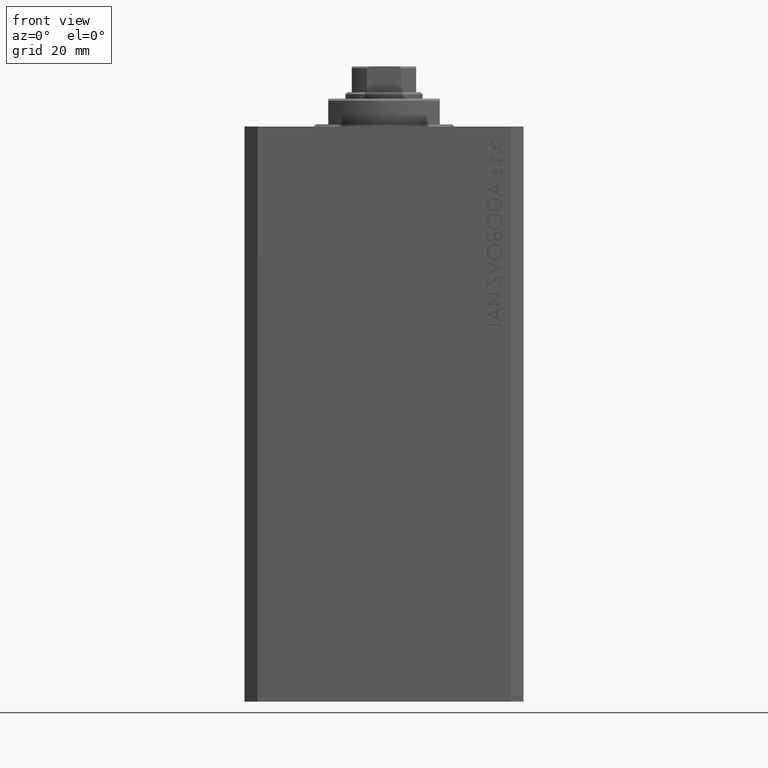
[diagram: clean part render]
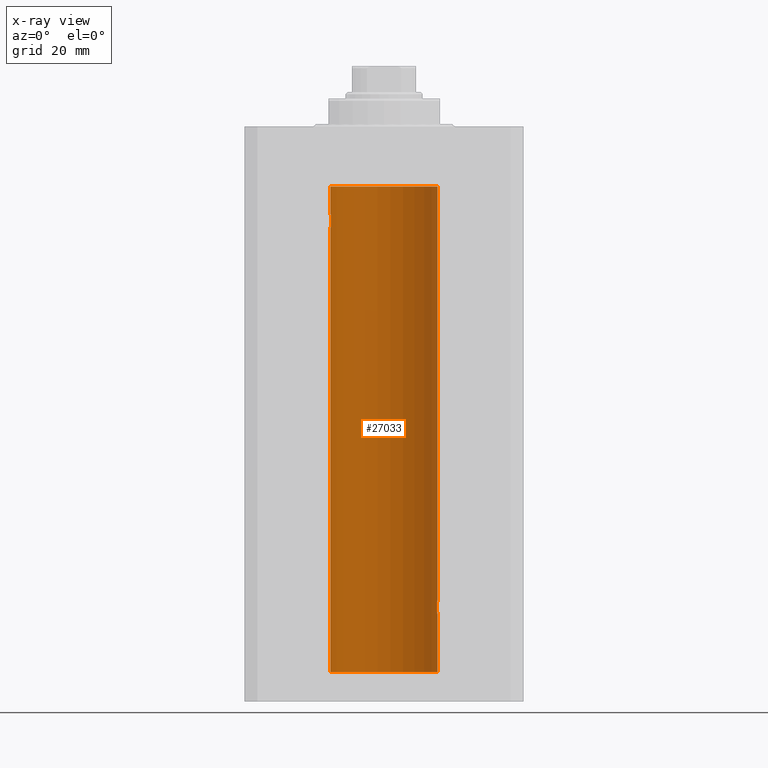
[diagram: x-ray — body ghosted, one internal face saturated and labeled with its STEP entity id]
A machine part, front view, then the same camera in x-ray: the body is ghosted and one INTERNAL B-rep face — a face not visible from any outside direction — is saturated and labeled: STEP entity #27033.
In plain terms, the highlighted cylindrical surface (partial cylindrical patch) has radius 12.5 mm, axis along (0, 0, 1).
Its self-contained STEP definition (entity closure, byte-faithful):
#165 = DIRECTION ( 'NONE',  ( 1.000000000000000000, 0.000000000000000000, 0.000000000000000000 ) ) ;
#208 = CARTESIAN_POINT ( 'NONE',  ( 12.43016561391612917, 1.322713721413880661, -113.5057887783670338 ) ) ;
#715 = DIRECTION ( 'NONE',  ( -0.000000000000000000, -0.000000000000000000, 1.000000000000000000 ) ) ;
#1342 = CARTESIAN_POINT ( 'NONE',  ( -12.37922086519035325, 1.734998657226764829, -23.00335814299181436 ) ) ;
#1849 = EDGE_CURVE ( 'NONE', #30759, #12184, #9492, .T. ) ;
#2438 = EDGE_CURVE ( 'NONE', #28802, #42203, #28899, .T. ) ;
#2780 = CARTESIAN_POINT ( 'NONE',  ( 12.50000000000000000, 0.000000000000000000, -127.0999999999999943 ) ) ;
#3203 = ORIENTED_EDGE ( 'NONE', *, *, #32482, .T. ) ;
#3784 = CARTESIAN_POINT ( 'NONE',  ( 12.50000000000000178, 0.1324055009716466613, -114.0000000000000568 ) ) ;
#4008 = CARTESIAN_POINT ( 'NONE',  ( 12.50000000000000000, -7.266276684081261841E-23, -110.0000000000000142 ) ) ;
#4174 = DIRECTION ( 'NONE',  ( 0.000000000000000000, 0.000000000000000000, 1.000000000000000000 ) ) ;
#4257 = CARTESIAN_POINT ( 'NONE',  ( 12.50000000000000000, 0.000000000000000000, -127.0999999999999943 ) ) ;
#4657 = CARTESIAN_POINT ( 'NONE',  ( 12.46910683544638232, 0.8866026273585037032, -110.2024786368969700 ) ) ;
#4941 = CARTESIAN_POINT ( 'NONE',  ( -12.48983485452574982, 0.5201193324741355539, -23.93561774521849372 ) ) ;
#5148 = CARTESIAN_POINT ( 'NONE',  ( 12.44079117518645639, 1.220047488436368122, -110.4098967633508437 ) ) ;
#5391 = AXIS2_PLACEMENT_3D ( 'NONE', #15160, #4174, #35963 ) ;
#5644 = CARTESIAN_POINT ( 'NONE',  ( -12.34109209020652465, 1.986986967296539897, -22.26269462454597914 ) ) ;
#5678 = ORIENTED_EDGE ( 'NONE', *, *, #1849, .F. ) ;
#5728 = ORIENTED_EDGE ( 'NONE', *, *, #2438, .T. ) ;
#5905 = ORIENTED_EDGE ( 'NONE', *, *, #26529, .T. ) ;
#6108 = VECTOR ( 'NONE', #27204, 1000.000000000000000 ) ;
#7618 = CARTESIAN_POINT ( 'NONE',  ( 12.33896267925302759, 2.000000000000247802, -112.0000000000000142 ) ) ;
#8283 = CARTESIAN_POINT ( 'NONE',  ( -12.49789934882883458, 0.2624928479599910047, -20.01301208516349917 ) ) ;
#8336 = VERTEX_POINT ( 'NONE', #32475 ) ;
#8737 = CARTESIAN_POINT ( 'NONE',  ( 12.49999999999999822, 0.1306079576516667173, -110.0000000000000000 ) ) ;
#8760 = VECTOR ( 'NONE', #12827, 1000.000000000000000 ) ;
#8786 = LINE ( 'NONE', #23087, #30540 ) ;
#9460 = CARTESIAN_POINT ( 'NONE',  ( -12.34922241902463114, 1.935814255713574239, -22.51937350851555308 ) ) ;
#9492 = LINE ( 'NONE', #23555, #8760 ) ;
#10230 = DIRECTION ( 'NONE',  ( -0.000000000000000000, -0.000000000000000000, 1.000000000000000000 ) ) ;
#10246 = VERTEX_POINT ( 'NONE', #35850 ) ;
#10575 = B_SPLINE_CURVE_WITH_KNOTS ( 'NONE', 3,
 ( #14693, #36904, #15410, #40703, #40466, #22314, #22551, #29007, #19450, #23728, #5148, #20144, #4657, #26377, #11826, #41426, #8737, #40948 ),
 .UNSPECIFIED., .F., .F.,
 ( 4, 2, 2, 2, 2, 2, 2, 2, 4 ),
 ( 0.003132244164174466730, 0.003523586189974241625, 0.003914928215774016521, 0.004306270241573791416, 0.004697612267373566311, 0.005088954293173341206, 0.005480296318973116101, 0.005871638344772890997, 0.006262980370572665892 ),
 .UNSPECIFIED. ) ;
#10967 = CARTESIAN_POINT ( 'NONE',  ( 12.48989642018887736, 0.5185418732824252919, -113.9360129218760989 ) ) ;
#11054 = VECTOR ( 'NONE', #715, 1000.000000000000000 ) ;
#11169 = ORIENTED_EDGE ( 'NONE', *, *, #31028, .T. ) ;
#11198 = CARTESIAN_POINT ( 'NONE',  ( 12.37760587642916477, 1.747868572747719229, -113.0063965316900294 ) ) ;
#11617 = CARTESIAN_POINT ( 'NONE',  ( -12.46021263690096958, 1.002494658017156981, -20.26446744561863156 ) ) ;
#11826 = CARTESIAN_POINT ( 'NONE',  ( 12.48983962833819028, 0.5199974825204898288, -110.0643516080802016 ) ) ;
#12184 = VERTEX_POINT ( 'NONE', #20576 ) ;
#12431 = ORIENTED_EDGE ( 'NONE', *, *, #28105, .F. ) ;
#12666 = LINE ( 'NONE', #2780, #6108 ) ;
#12799 = CARTESIAN_POINT ( 'NONE',  ( -12.43034574091277911, 1.321095788880539024, -23.50733550364322255 ) ) ;
#12827 = DIRECTION ( 'NONE',  ( -0.000000000000000000, -0.000000000000000000, 1.000000000000000000 ) ) ;
#13698 = CARTESIAN_POINT ( 'NONE',  ( 12.50000000000000000, 2.320363022323678888E-15, -114.0000000000000142 ) ) ;
#13761 = AXIS2_PLACEMENT_3D ( 'NONE', #17445, #35377, #31297 ) ;
#13807 = CARTESIAN_POINT ( 'NONE',  ( 0.000000000000000000, 0.000000000000000000, -127.0999999999999943 ) ) ;
#14259 = VERTEX_POINT ( 'NONE', #19037 ) ;
#14693 = CARTESIAN_POINT ( 'NONE',  ( 12.33896267925302759, 2.000000000000247802, -112.0000000000000142 ) ) ;
#14780 = CARTESIAN_POINT ( 'NONE',  ( 12.39869754437268590, 1.598954131913722820, -113.2293215281301002 ) ) ;
#15160 = CARTESIAN_POINT ( 'NONE',  ( 0.000000000000000000, 0.000000000000000000, -127.0999999999999943 ) ) ;
#15190 = CARTESIAN_POINT ( 'NONE',  ( -12.48390768591463207, 0.6455696738844916016, -20.10252270298193977 ) ) ;
#15410 = CARTESIAN_POINT ( 'NONE',  ( 12.34110728646152388, 1.986893050944454453, -111.7366134776498257 ) ) ;
#15913 = CARTESIAN_POINT ( 'NONE',  ( -12.39864157855465088, 1.590288205413973532, -23.21980790594580313 ) ) ;
#16146 = CARTESIAN_POINT ( 'NONE',  ( -12.37764291807175354, 1.747608771958140794, -20.99316879552500481 ) ) ;
#16379 = CARTESIAN_POINT ( 'NONE',  ( -12.44076681548080288, 1.220297236145718944, -23.58991408680628155 ) ) ;
#16609 = CARTESIAN_POINT ( 'NONE',  ( -12.34781876294798053, 1.947190906025043633, -21.47436412829509678 ) ) ;
#17445 = CARTESIAN_POINT ( 'NONE',  ( 0.000000000000000000, 0.000000000000000000, -13.99999999999999822 ) ) ;
#18305 = CIRCLE ( 'NONE', #13761, 12.50000000000000000 ) ;
#18763 = CARTESIAN_POINT ( 'NONE',  ( -12.50000000000000000, 1.867773856434666690E-17, -20.00000000000000000 ) ) ;
#19037 = CARTESIAN_POINT ( 'NONE',  ( -12.50000000000000000, 1.530808426276628993E-15, -23.99999999999999645 ) ) ;
#19450 = CARTESIAN_POINT ( 'NONE',  ( 12.40916530024876430, 1.507117913375715990, -110.6786595504900532 ) ) ;
#19478 = CARTESIAN_POINT ( 'NONE',  ( -12.33895470450623044, 2.000049200055401766, -22.12992629360264729 ) ) ;
#19943 = CARTESIAN_POINT ( 'NONE',  ( -12.33897869807161385, 1.999901172190678089, -21.73788193668374547 ) ) ;
#20144 = CARTESIAN_POINT ( 'NONE',  ( 12.46011632531798874, 1.003644408234883434, -110.2651679968767411 ) ) ;
#20576 = CARTESIAN_POINT ( 'NONE',  ( -12.50000000000000000, 1.530808498934191521E-15, -13.99999999999999822 ) ) ;
#22314 = CARTESIAN_POINT ( 'NONE',  ( 12.37021546997940291, 1.797317011867403114, -111.1129511974108226 ) ) ;
#22551 = CARTESIAN_POINT ( 'NONE',  ( 12.37925647381943506, 1.734744884174218571, -110.9962073259865178 ) ) ;
#22814 = CARTESIAN_POINT ( 'NONE',  ( -12.48990118705761532, 0.5184196815546056047, -20.06395648222637007 ) ) ;
#23087 = CARTESIAN_POINT ( 'NONE',  ( -12.50000000000000000, 1.530808498934191521E-15, -127.0999999999999943 ) ) ;
#23555 = CARTESIAN_POINT ( 'NONE',  ( -12.50000000000000000, 1.530808498934191521E-15, -127.0999999999999943 ) ) ;
#23728 = CARTESIAN_POINT ( 'NONE',  ( 12.43037348241797524, 1.320834183883837554, -110.4924383770429301 ) ) ;
#23888 = EDGE_CURVE ( 'NONE', #44546, #28359, #12666, .T. ) ;
#24001 = CARTESIAN_POINT ( 'NONE',  ( -12.50000000000000533, 0.1306394121199390135, -24.00000000000000711 ) ) ;
#24090 = CARTESIAN_POINT ( 'NONE',  ( 12.50000000000000000, 0.000000000000000000, -13.99999999999999822 ) ) ;
#25056 = EDGE_LOOP ( 'NONE', ( #42043, #12431, #43687, #11169, #32411, #5728, #3203, #5678, #5905 ) ) ;
#25524 = CARTESIAN_POINT ( 'NONE',  ( 12.48390005916863110, 0.6457215011736527899, -113.8974277155426904 ) ) ;
#26377 = CARTESIAN_POINT ( 'NONE',  ( 12.48395395845270528, 0.6446573166014707423, -110.1022212421352009 ) ) ;
#26529 = EDGE_CURVE ( 'NONE', #30759, #14259, #44141, .T. ) ;
#26637 = CARTESIAN_POINT ( 'NONE',  ( -12.46009879577771606, 1.003863686549169465, -23.73470742397611843 ) ) ;
#26883 = CARTESIAN_POINT ( 'NONE',  ( -12.37018026341338839, 1.797558627508998086, -22.88656313533016373 ) ) ;
#27033 = ADVANCED_FACE ( 'NONE', ( #35776 ), #31944, .F. ) ;
#27204 = DIRECTION ( 'NONE',  ( -0.000000000000000000, -0.000000000000000000, 1.000000000000000000 ) ) ;
#27884 = EDGE_CURVE ( 'NONE', #10246, #14259, #8786, .T. ) ;
#28105 = EDGE_CURVE ( 'NONE', #44546, #10246, #36638, .T. ) ;
#28359 = VERTEX_POINT ( 'NONE', #13698 ) ;
#28802 = VERTEX_POINT ( 'NONE', #4008 ) ;
#28899 = LINE ( 'NONE', #33437, #11054 ) ;
#29007 = CARTESIAN_POINT ( 'NONE',  ( 12.39867611624532806, 1.590019252152828910, -110.7798449592960992 ) ) ;
#30540 = VECTOR ( 'NONE', #34090, 1000.000000000000000 ) ;
#30706 = CARTESIAN_POINT ( 'NONE',  ( -12.46909283808506430, 0.8868029758979402155, -23.79742491916155345 ) ) ;
#30759 = VERTEX_POINT ( 'NONE', #44883 ) ;
#31028 = EDGE_CURVE ( 'NONE', #28359, #8336, #42758, .T. ) ;
#31297 = DIRECTION ( 'NONE',  ( 1.000000000000000000, 0.000000000000000000, 0.000000000000000000 ) ) ;
#31944 = CYLINDRICAL_SURFACE ( 'NONE', #32882, 12.50000000000000000 ) ;
#32411 = ORIENTED_EDGE ( 'NONE', *, *, #35936, .T. ) ;
#32475 = CARTESIAN_POINT ( 'NONE',  ( 12.33896267925302759, 2.000000000000247802, -112.0000000000000142 ) ) ;
#32482 = EDGE_CURVE ( 'NONE', #42203, #12184, #18305, .T. ) ;
#32866 = CARTESIAN_POINT ( 'NONE',  ( -12.44082361696003503, 1.219754986802281449, -20.40963319990594016 ) ) ;
#32882 = AXIS2_PLACEMENT_3D ( 'NONE', #13807, #10230, #165 ) ;
#32928 = CARTESIAN_POINT ( 'NONE',  ( 12.46019522898365217, 1.002712894177336223, -113.7354089602760041 ) ) ;
#33437 = CARTESIAN_POINT ( 'NONE',  ( 12.50000000000000000, 0.000000000000000000, -127.0999999999999943 ) ) ;
#34067 = CARTESIAN_POINT ( 'NONE',  ( -12.43019346654084956, 1.322451657002078340, -20.49398366327208620 ) ) ;
#34090 = DIRECTION ( 'NONE',  ( -0.000000000000000000, -0.000000000000000000, 1.000000000000000000 ) ) ;
#34532 = CARTESIAN_POINT ( 'NONE',  ( -12.49788564268284041, 0.2633501011236127343, -23.98690384766255335 ) ) ;
#35377 = DIRECTION ( 'NONE',  ( 0.000000000000000000, 0.000000000000000000, 1.000000000000000000 ) ) ;
#35776 = FACE_OUTER_BOUND ( 'NONE', #25056, .T. ) ;
#35850 = CARTESIAN_POINT ( 'NONE',  ( -12.50000000000000000, 1.530808498934191521E-15, -127.0999999999999943 ) ) ;
#35936 = EDGE_CURVE ( 'NONE', #8336, #28802, #10575, .T. ) ;
#35963 = DIRECTION ( 'NONE',  ( 1.000000000000000000, 0.000000000000000000, 0.000000000000000000 ) ) ;
#36638 = CIRCLE ( 'NONE', #5391, 12.50000000000000000 ) ;
#36754 = CARTESIAN_POINT ( 'NONE',  ( 12.33896267925302759, 2.000000000000248246, -112.2614317422078898 ) ) ;
#36904 = CARTESIAN_POINT ( 'NONE',  ( 12.33896267925302581, 2.000000000000247358, -111.8693470594992050 ) ) ;
#37402 = CARTESIAN_POINT ( 'NONE',  ( -12.50000000000000000, 0.1323736289504353625, -20.00000000000000000 ) ) ;
#38587 = CARTESIAN_POINT ( 'NONE',  ( -12.35517291625592051, 1.897967064543089721, -22.64415233770293412 ) ) ;
#39617 = CARTESIAN_POINT ( 'NONE',  ( 12.49789833780794446, 0.2625555164371021766, -113.9869817082214780 ) ) ;
#40089 = CARTESIAN_POINT ( 'NONE',  ( 12.46901623405144122, 0.8878913781257877780, -113.7968965171754974 ) ) ;
#40318 = CARTESIAN_POINT ( 'NONE',  ( 12.34779119491631683, 1.947363444907009633, -112.5250277516825150 ) ) ;
#40466 = CARTESIAN_POINT ( 'NONE',  ( 12.35520276972935427, 1.897773362058238877, -111.3552827863433947 ) ) ;
#40703 = CARTESIAN_POINT ( 'NONE',  ( 12.34924836377099844, 1.935649219704934865, -111.4800206212716489 ) ) ;
#40948 = CARTESIAN_POINT ( 'NONE',  ( 12.50000000000000000, -7.266276684081261841E-23, -110.0000000000000142 ) ) ;
#41426 = CARTESIAN_POINT ( 'NONE',  ( 12.49788668346399945, 0.2632864803365707607, -110.0130897583833445 ) ) ;
#41450 = CARTESIAN_POINT ( 'NONE',  ( -12.40913174964213184, 1.507394620545641439, -23.32102833500698225 ) ) ;
#42043 = ORIENTED_EDGE ( 'NONE', *, *, #27884, .F. ) ;
#42203 = VERTEX_POINT ( 'NONE', #24090 ) ;
#42758 = B_SPLINE_CURVE_WITH_KNOTS ( 'NONE', 3,
 ( #47217, #3784, #39617, #10967, #25524, #40089, #32928, #43888, #208, #14780, #11198, #40318, #36754, #7618 ),
 .UNSPECIFIED., .F., .F.,
 ( 4, 2, 2, 2, 2, 2, 4 ),
 ( 2.254408494944823136E-18, 0.0003915305205218102386, 0.0007830610410436180920, 0.001174591561565426108, 0.001566122082087234016, 0.002349183123130850048, 0.003132244164174466730 ),
 .UNSPECIFIED. ) ;
#43687 = ORIENTED_EDGE ( 'NONE', *, *, #23888, .T. ) ;
#43888 = CARTESIAN_POINT ( 'NONE',  ( 12.44079900692650931, 1.220007525301739282, -113.5901757908366534 ) ) ;
#44141 = B_SPLINE_CURVE_WITH_KNOTS ( 'NONE', 3,
 ( #18763, #37402, #8283, #22814, #15190, #44295, #11617, #32866, #34067, #45716, #16146, #16609, #19943, #19478, #5644, #9460, #38587, #26883, #1342, #15913, #41450, #12799, #16379, #26637, #30706, #45959, #4941, #34532, #24001, #45248 ),
 .UNSPECIFIED., .F., .F.,
 ( 4, 2, 2, 2, 2, 2, 2, 2, 2, 2, 2, 2, 2, 2, 4 ),
 ( 1.814683826656258666E-20, 0.0003914362731607577369, 0.0007828725463215154739, 0.001174308819482273265, 0.001565745092643030948, 0.002348617638964546530, 0.003131490185286061895, 0.003522926458446825216, 0.003914362731607588103, 0.004305799004768351423, 0.004697235277929114744, 0.005088671551089878065, 0.005480107824250641385, 0.005871544097411404706, 0.006262980370572168026 ),
 .UNSPECIFIED. ) ;
#44295 = CARTESIAN_POINT ( 'NONE',  ( -12.46903010196599304, 0.8876934327478135378, -20.20300788371381984 ) ) ;
#44546 = VERTEX_POINT ( 'NONE', #4257 ) ;
#44883 = CARTESIAN_POINT ( 'NONE',  ( -12.50000000000000000, 1.867773856434666690E-17, -20.00000000000000000 ) ) ;
#45248 = CARTESIAN_POINT ( 'NONE',  ( -12.50000000000000000, 1.530808426276628993E-15, -23.99999999999999645 ) ) ;
#45716 = CARTESIAN_POINT ( 'NONE',  ( -12.39873273758732175, 1.598680238462371062, -20.77033506126851137 ) ) ;
#45959 = CARTESIAN_POINT ( 'NONE',  ( -12.48394649977302073, 0.6448065707253024526, -23.89773031393659153 ) ) ;
#47217 = CARTESIAN_POINT ( 'NONE',  ( 12.50000000000000000, 2.320363022323678888E-15, -114.0000000000000142 ) ) ;